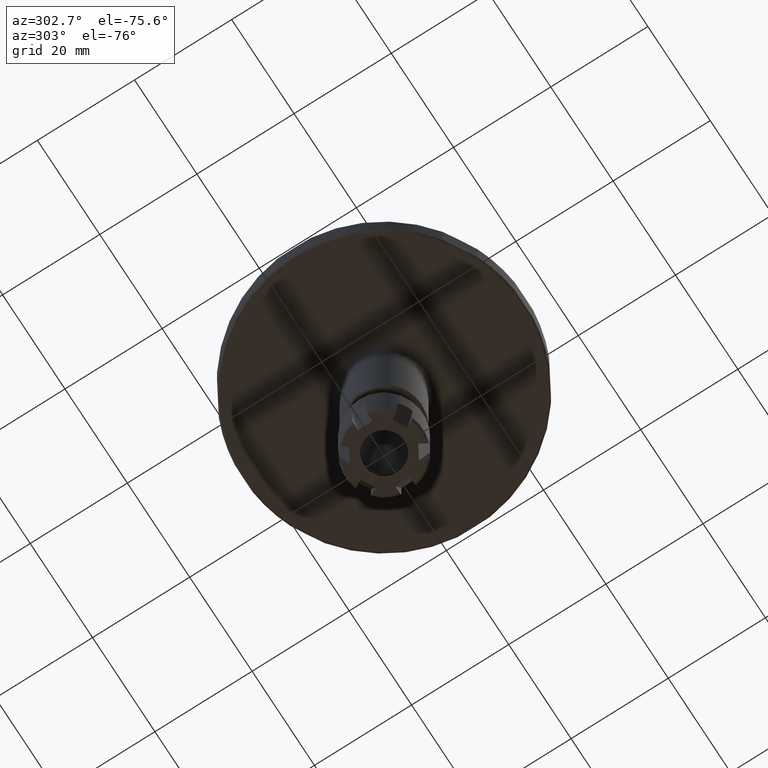
[diagram: clean part render]
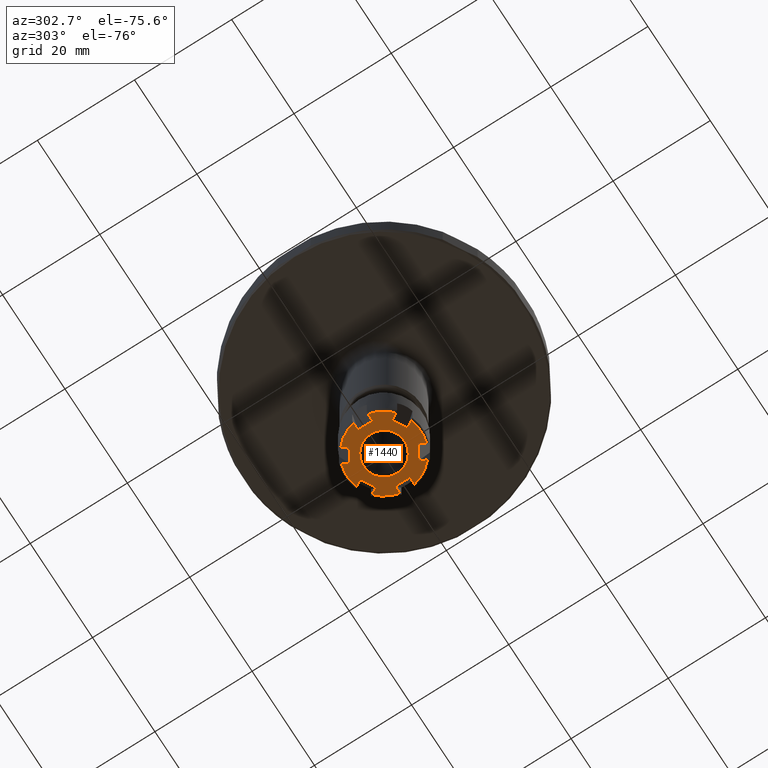
[diagram: same view with one face highlighted and labeled with its STEP entity id]
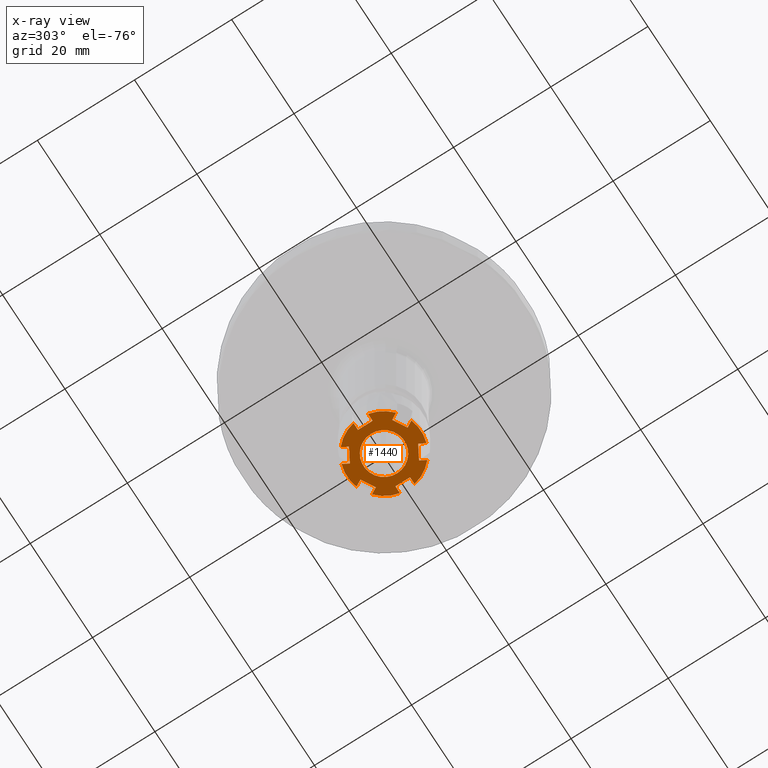
[diagram: x-ray of the same camera — body ghosted, the highlighted face saturated]
A machine part, auxiliary view. The second image highlights one B-rep face of the part: STEP entity #1440.
The next image is the same camera in x-ray: the body ghosted, the highlighted face saturated — about 0% of this face is hidden behind the body in this view.
In plain terms, the highlighted planar face has unit normal (0, 0, -1).
Its self-contained STEP definition (entity closure, byte-faithful):
#78=LINE('',#2195,#148);
#79=LINE('',#2197,#149);
#80=LINE('',#2199,#150);
#81=LINE('',#2203,#151);
#82=LINE('',#2205,#152);
#83=LINE('',#2207,#153);
#84=LINE('',#2211,#154);
#85=LINE('',#2213,#155);
#86=LINE('',#2215,#156);
#87=LINE('',#2219,#157);
#88=LINE('',#2221,#158);
#89=LINE('',#2223,#159);
#90=LINE('',#2227,#160);
#91=LINE('',#2229,#161);
#92=LINE('',#2231,#162);
#93=LINE('',#2235,#163);
#94=LINE('',#2237,#164);
#95=LINE('',#2239,#165);
#148=VECTOR('',#1768,1000.);
#149=VECTOR('',#1769,1000.);
#150=VECTOR('',#1770,1000.);
#151=VECTOR('',#1773,1000.);
#152=VECTOR('',#1774,1000.);
#153=VECTOR('',#1775,1000.);
#154=VECTOR('',#1778,1000.);
#155=VECTOR('',#1779,1000.);
#156=VECTOR('',#1780,1000.);
#157=VECTOR('',#1783,1000.);
#158=VECTOR('',#1784,1000.);
#159=VECTOR('',#1785,1000.);
#160=VECTOR('',#1788,1000.);
#161=VECTOR('',#1789,1000.);
#162=VECTOR('',#1790,1000.);
#163=VECTOR('',#1793,1000.);
#164=VECTOR('',#1794,1000.);
#165=VECTOR('',#1795,1000.);
#297=ORIENTED_EDGE('',*,*,#700,.F.);
#298=ORIENTED_EDGE('',*,*,#701,.T.);
#299=ORIENTED_EDGE('',*,*,#702,.F.);
#300=ORIENTED_EDGE('',*,*,#703,.T.);
#301=ORIENTED_EDGE('',*,*,#704,.T.);
#302=ORIENTED_EDGE('',*,*,#705,.T.);
#303=ORIENTED_EDGE('',*,*,#706,.F.);
#304=ORIENTED_EDGE('',*,*,#707,.T.);
#305=ORIENTED_EDGE('',*,*,#708,.T.);
#306=ORIENTED_EDGE('',*,*,#709,.T.);
#307=ORIENTED_EDGE('',*,*,#710,.F.);
#308=ORIENTED_EDGE('',*,*,#711,.T.);
#309=ORIENTED_EDGE('',*,*,#712,.T.);
#310=ORIENTED_EDGE('',*,*,#713,.T.);
#311=ORIENTED_EDGE('',*,*,#714,.F.);
#312=ORIENTED_EDGE('',*,*,#715,.T.);
#313=ORIENTED_EDGE('',*,*,#716,.T.);
#314=ORIENTED_EDGE('',*,*,#717,.T.);
#315=ORIENTED_EDGE('',*,*,#718,.F.);
#316=ORIENTED_EDGE('',*,*,#719,.T.);
#317=ORIENTED_EDGE('',*,*,#720,.T.);
#318=ORIENTED_EDGE('',*,*,#721,.T.);
#319=ORIENTED_EDGE('',*,*,#722,.F.);
#320=ORIENTED_EDGE('',*,*,#723,.T.);
#321=ORIENTED_EDGE('',*,*,#724,.T.);
#700=EDGE_CURVE('',#905,#905,#1052,.T.);
#701=EDGE_CURVE('',#906,#907,#1053,.T.);
#702=EDGE_CURVE('',#908,#907,#78,.T.);
#703=EDGE_CURVE('',#908,#909,#79,.T.);
#704=EDGE_CURVE('',#909,#910,#80,.T.);
#705=EDGE_CURVE('',#910,#911,#1054,.T.);
#706=EDGE_CURVE('',#912,#911,#81,.T.);
#707=EDGE_CURVE('',#912,#913,#82,.T.);
#708=EDGE_CURVE('',#913,#914,#83,.T.);
#709=EDGE_CURVE('',#914,#915,#1055,.T.);
#710=EDGE_CURVE('',#916,#915,#84,.T.);
#711=EDGE_CURVE('',#916,#917,#85,.T.);
#712=EDGE_CURVE('',#917,#918,#86,.T.);
#713=EDGE_CURVE('',#918,#919,#1056,.T.);
#714=EDGE_CURVE('',#920,#919,#87,.T.);
#715=EDGE_CURVE('',#920,#921,#88,.T.);
#716=EDGE_CURVE('',#921,#922,#89,.T.);
#717=EDGE_CURVE('',#922,#923,#1057,.T.);
#718=EDGE_CURVE('',#924,#923,#90,.T.);
#719=EDGE_CURVE('',#924,#925,#91,.T.);
#720=EDGE_CURVE('',#925,#926,#92,.T.);
#721=EDGE_CURVE('',#926,#927,#1058,.T.);
#722=EDGE_CURVE('',#928,#927,#93,.T.);
#723=EDGE_CURVE('',#928,#929,#94,.T.);
#724=EDGE_CURVE('',#929,#906,#95,.T.);
#905=VERTEX_POINT('',#2191);
#906=VERTEX_POINT('',#2193);
#907=VERTEX_POINT('',#2194);
#908=VERTEX_POINT('',#2196);
#909=VERTEX_POINT('',#2198);
#910=VERTEX_POINT('',#2200);
#911=VERTEX_POINT('',#2202);
#912=VERTEX_POINT('',#2204);
#913=VERTEX_POINT('',#2206);
#914=VERTEX_POINT('',#2208);
#915=VERTEX_POINT('',#2210);
#916=VERTEX_POINT('',#2212);
#917=VERTEX_POINT('',#2214);
#918=VERTEX_POINT('',#2216);
#919=VERTEX_POINT('',#2218);
#920=VERTEX_POINT('',#2220);
#921=VERTEX_POINT('',#2222);
#922=VERTEX_POINT('',#2224);
#923=VERTEX_POINT('',#2226);
#924=VERTEX_POINT('',#2228);
#925=VERTEX_POINT('',#2230);
#926=VERTEX_POINT('',#2232);
#927=VERTEX_POINT('',#2234);
#928=VERTEX_POINT('',#2236);
#929=VERTEX_POINT('',#2238);
#1052=CIRCLE('',#1562,4.19999999999998);
#1053=CIRCLE('',#1563,7.6);
#1054=CIRCLE('',#1564,7.6);
#1055=CIRCLE('',#1565,7.6);
#1056=CIRCLE('',#1566,7.6);
#1057=CIRCLE('',#1567,7.6);
#1058=CIRCLE('',#1568,7.6);
#1136=EDGE_LOOP('',(#297));
#1137=EDGE_LOOP('',(#298,#299,#300,#301,#302,#303,#304,#305,#306,#307,#308,
#309,#310,#311,#312,#313,#314,#315,#316,#317,#318,#319,#320,#321));
#1274=FACE_BOUND('',#1136,.T.);
#1275=FACE_BOUND('',#1137,.T.);
#1398=PLANE('',#1561);
#1440=ADVANCED_FACE('',(#1274,#1275),#1398,.T.);
#1561=AXIS2_PLACEMENT_3D('',#2189,#1762,#1763);
#1562=AXIS2_PLACEMENT_3D('',#2190,#1764,#1765);
#1563=AXIS2_PLACEMENT_3D('',#2192,#1766,#1767);
#1564=AXIS2_PLACEMENT_3D('',#2201,#1771,#1772);
#1565=AXIS2_PLACEMENT_3D('',#2209,#1776,#1777);
#1566=AXIS2_PLACEMENT_3D('',#2217,#1781,#1782);
#1567=AXIS2_PLACEMENT_3D('',#2225,#1786,#1787);
#1568=AXIS2_PLACEMENT_3D('',#2233,#1791,#1792);
#1762=DIRECTION('',(1.08432801113644E-16,7.61584351035E-18,-1.));
#1763=DIRECTION('',(-1.,6.12303176911188E-17,-1.08432801113644E-16));
#1764=DIRECTION('',(0.,0.,-1.));
#1765=DIRECTION('',(-1.,0.,0.));
#1766=DIRECTION('',(1.08432801113644E-16,7.61584351035E-18,-1.));
#1767=DIRECTION('',(-1.,6.12303176911188E-17,-1.08432801113644E-16));
#1768=DIRECTION('',(-0.499999999999999,-0.866025403784439,-6.08119145080321E-17));
#1769=DIRECTION('',(-0.866025403784439,0.499999999999999,-9.00976386127467E-17));
#1770=DIRECTION('',(-0.499999999999999,-0.866025403784439,-6.08119145080321E-17));
#1771=DIRECTION('',(1.08432801113644E-16,7.61584351035E-18,-1.));
#1772=DIRECTION('',(-1.,6.12303176911188E-17,-1.08432801113644E-16));
#1773=DIRECTION('',(-1.,6.12303176911188E-17,-1.08432801113644E-16));
#1774=DIRECTION('',(6.12303176911189E-17,1.,7.61584351035001E-18));
#1775=DIRECTION('',(-1.,6.12303176911188E-17,-1.08432801113644E-16));
#1776=DIRECTION('',(1.08432801113644E-16,7.61584351035E-18,-1.));
#1777=DIRECTION('',(-1.,6.12303176911188E-17,-1.08432801113644E-16));
#1778=DIRECTION('',(-0.5,0.866025403784439,-4.76208866056122E-17));
#1779=DIRECTION('',(0.866025403784439,0.5,9.77134821230966E-17));
#1780=DIRECTION('',(-0.5,0.866025403784439,-4.76208866056122E-17));
#1781=DIRECTION('',(1.08432801113644E-16,7.61584351035E-18,-1.));
#1782=DIRECTION('',(-1.,6.12303176911188E-17,-1.08432801113644E-16));
#1783=DIRECTION('',(0.5,0.866025403784439,6.08119145080322E-17));
#1784=DIRECTION('',(0.866025403784439,-0.5,9.00976386127466E-17));
#1785=DIRECTION('',(0.5,0.866025403784439,6.08119145080322E-17));
#1786=DIRECTION('',(1.08432801113644E-16,7.61584351035E-18,-1.));
#1787=DIRECTION('',(-1.,6.12303176911188E-17,-1.08432801113644E-16));
#1788=DIRECTION('',(1.,6.12343622236165E-17,1.08432801113644E-16));
#1789=DIRECTION('',(6.12343622236165E-17,-1.,-7.61584351034999E-18));
#1790=DIRECTION('',(1.,6.12343622236165E-17,1.08432801113644E-16));
#1791=DIRECTION('',(1.08432801113644E-16,7.61584351035E-18,-1.));
#1792=DIRECTION('',(-1.,6.12303176911188E-17,-1.08432801113644E-16));
#1793=DIRECTION('',(0.500000000000001,-0.866025403784438,4.76208866056124E-17));
#1794=DIRECTION('',(-0.866025403784438,-0.500000000000001,-9.77134821230965E-17));
#1795=DIRECTION('',(0.500000000000001,-0.866025403784438,4.76208866056124E-17));
#2189=CARTESIAN_POINT('',(-4.19999999999998,3.14286160630324E-16,-50.));
#2190=CARTESIAN_POINT('',(0.,0.,-50.));
#2191=CARTESIAN_POINT('',(-4.19999999999998,0.,-50.));
#2192=CARTESIAN_POINT('',(1.76940743584371E-14,5.71188263276244E-17,-50.));
#2193=CARTESIAN_POINT('',(2.42621356367405,-7.20232516229614,-50.));
#2194=CARTESIAN_POINT('',(-2.426213563674,-7.20232516229615,-50.));
#2195=CARTESIAN_POINT('',(-1.70096189432332,-5.94615242270663,-50.));
#2196=CARTESIAN_POINT('',(-1.70096189432332,-5.94615242270663,-50.));
#2197=CARTESIAN_POINT('',(-1.70096189432332,-5.94615242270663,-50.));
#2198=CARTESIAN_POINT('',(-4.29903810567664,-4.44615242270664,-50.));
#2199=CARTESIAN_POINT('',(-4.29903810567664,-4.44615242270664,-50.));
#2200=CARTESIAN_POINT('',(-5.02428977502731,-5.70232516229615,-50.));
#2201=CARTESIAN_POINT('',(1.76940743584371E-14,5.71188263276244E-17,-50.));
#2202=CARTESIAN_POINT('',(-7.45050333870134,-1.5,-50.));
#2203=CARTESIAN_POINT('',(-5.99999999999998,-1.5,-50.));
#2204=CARTESIAN_POINT('',(-5.99999999999998,-1.5,-50.));
#2205=CARTESIAN_POINT('',(-5.99999999999998,-1.5,-50.));
#2206=CARTESIAN_POINT('',(-5.99999999999998,1.5,-50.));
#2207=CARTESIAN_POINT('',(-5.99999999999998,1.5,-50.));
#2208=CARTESIAN_POINT('',(-7.45050333870134,1.5,-50.));
#2209=CARTESIAN_POINT('',(1.76940743584371E-14,5.71188263276244E-17,-50.));
#2210=CARTESIAN_POINT('',(-5.02428977502732,5.70232516229615,-50.));
#2211=CARTESIAN_POINT('',(-4.29903810567664,4.44615242270663,-50.));
#2212=CARTESIAN_POINT('',(-4.29903810567664,4.44615242270663,-50.));
#2213=CARTESIAN_POINT('',(-4.29903810567664,4.44615242270663,-50.));
#2214=CARTESIAN_POINT('',(-1.70096189432332,5.94615242270663,-50.));
#2215=CARTESIAN_POINT('',(-1.70096189432332,5.94615242270663,-50.));
#2216=CARTESIAN_POINT('',(-2.426213563674,7.20232516229615,-50.));
#2217=CARTESIAN_POINT('',(1.76940743584371E-14,5.71188263276244E-17,-50.));
#2218=CARTESIAN_POINT('',(2.42621356367404,7.20232516229615,-50.));
#2219=CARTESIAN_POINT('',(1.70096189432336,5.94615242270663,-50.));
#2220=CARTESIAN_POINT('',(1.70096189432336,5.94615242270663,-50.));
#2221=CARTESIAN_POINT('',(1.70096189432336,5.94615242270663,-50.));
#2222=CARTESIAN_POINT('',(4.29903810567668,4.44615242270663,-50.));
#2223=CARTESIAN_POINT('',(4.29903810567668,4.44615242270663,-50.));
#2224=CARTESIAN_POINT('',(5.02428977502735,5.70232516229615,-50.));
#2225=CARTESIAN_POINT('',(1.76940743584371E-14,5.71188263276244E-17,-50.));
#2226=CARTESIAN_POINT('',(7.45050333870137,1.5,-50.));
#2227=CARTESIAN_POINT('',(6.00000000000002,1.5,-50.));
#2228=CARTESIAN_POINT('',(6.00000000000002,1.5,-50.));
#2229=CARTESIAN_POINT('',(6.00000000000002,1.5,-50.));
#2230=CARTESIAN_POINT('',(6.00000000000002,-1.5,-50.));
#2231=CARTESIAN_POINT('',(6.00000000000002,-1.5,-50.));
#2232=CARTESIAN_POINT('',(7.45050333870137,-1.5,-50.));
#2233=CARTESIAN_POINT('',(1.76940743584371E-14,5.71188263276244E-17,-50.));
#2234=CARTESIAN_POINT('',(5.02428977502736,-5.70232516229614,-50.));
#2235=CARTESIAN_POINT('',(4.29903810567668,-4.44615242270663,-50.));
#2236=CARTESIAN_POINT('',(4.29903810567668,-4.44615242270663,-50.));
#2237=CARTESIAN_POINT('',(4.29903810567668,-4.44615242270663,-50.));
#2238=CARTESIAN_POINT('',(1.70096189432337,-5.94615242270663,-50.));
#2239=CARTESIAN_POINT('',(1.70096189432337,-5.94615242270663,-50.));